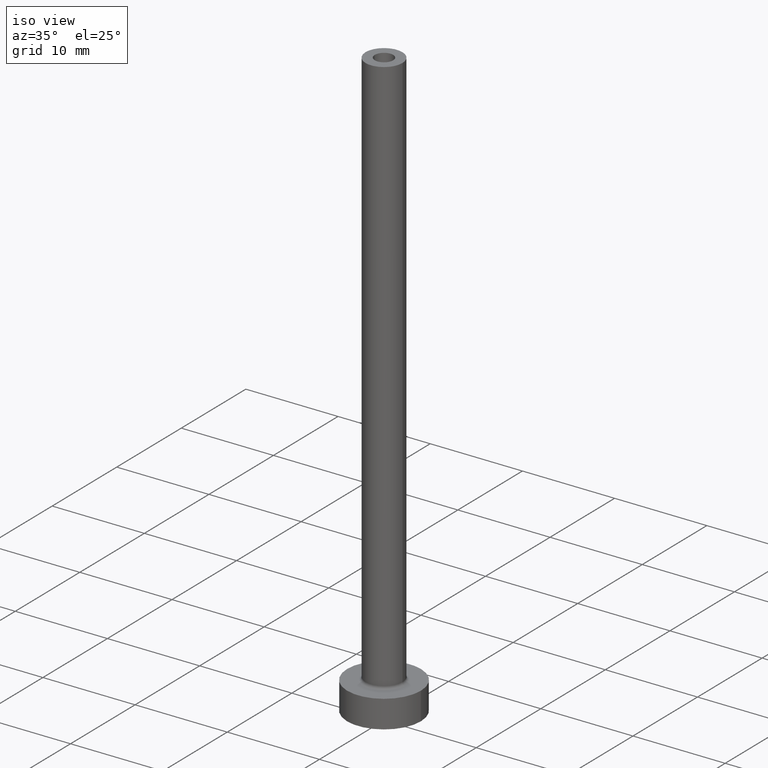
[diagram: clean part render]
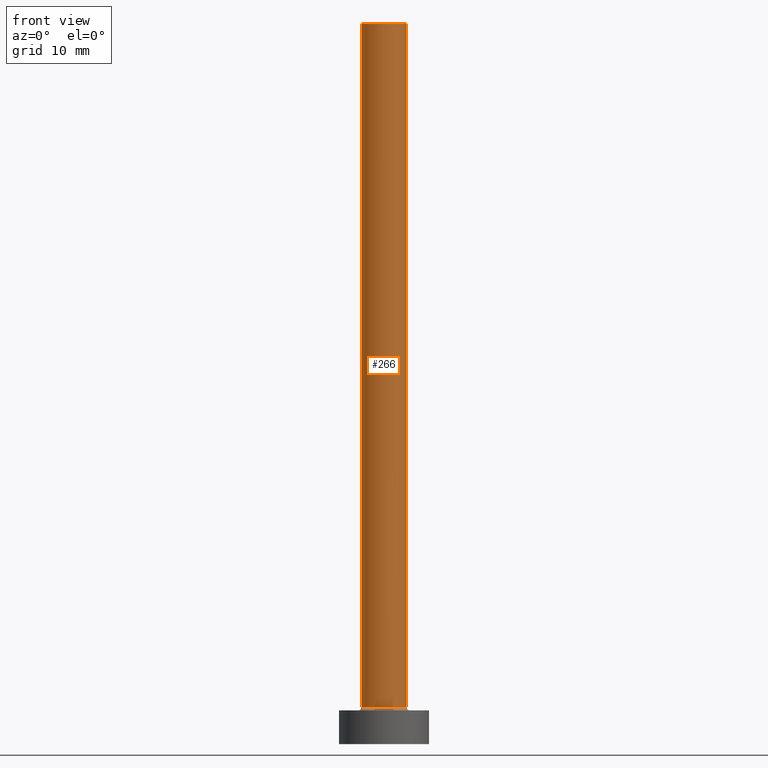
[diagram: tour spotlight — one face highlighted and labeled with its STEP entity id]
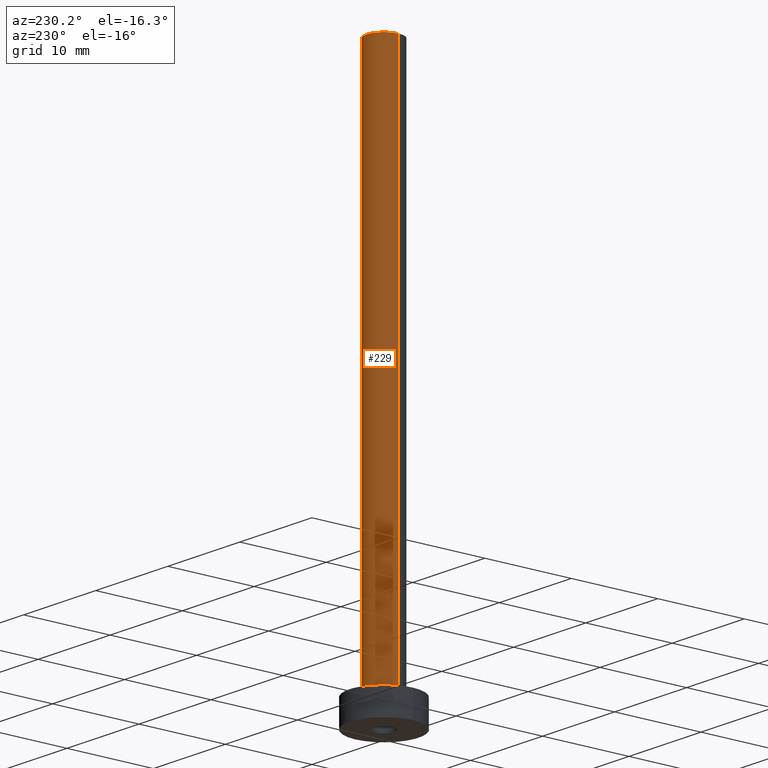
[diagram: tour spotlight — one face highlighted and labeled with its STEP entity id]
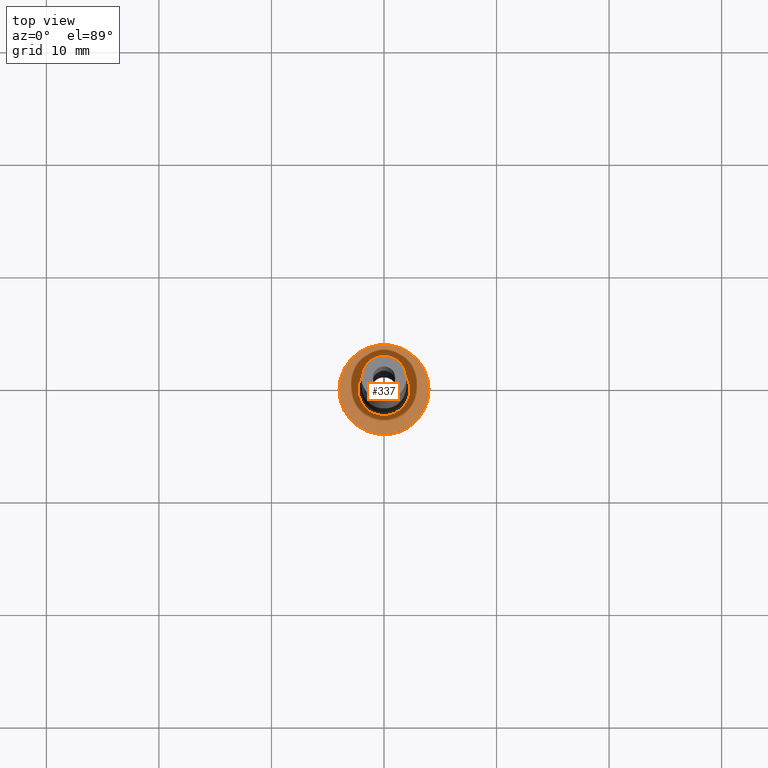
[diagram: tour spotlight — one face highlighted and labeled with its STEP entity id]
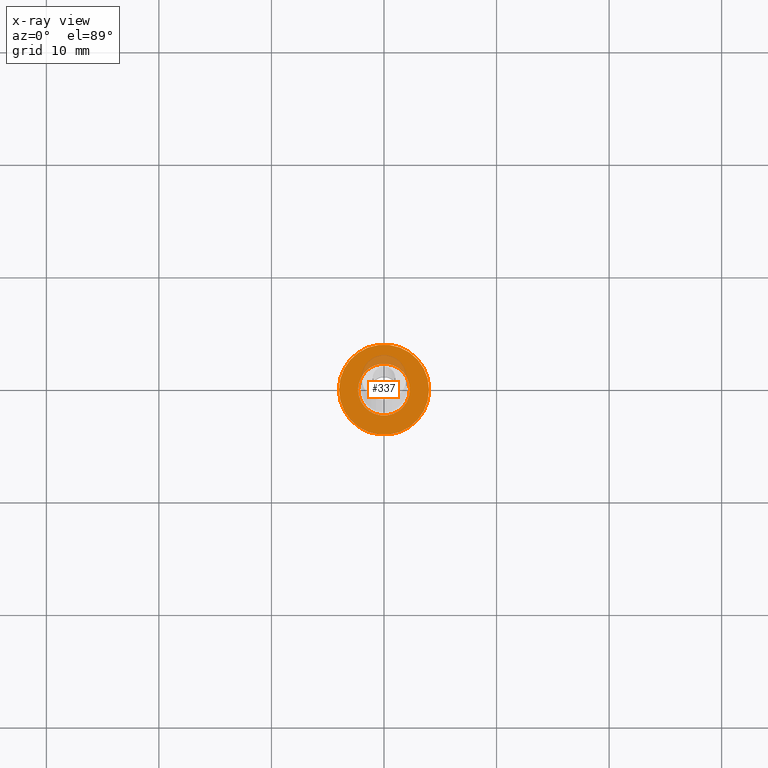
[diagram: x-ray of the same camera — body ghosted, this tour face saturated]
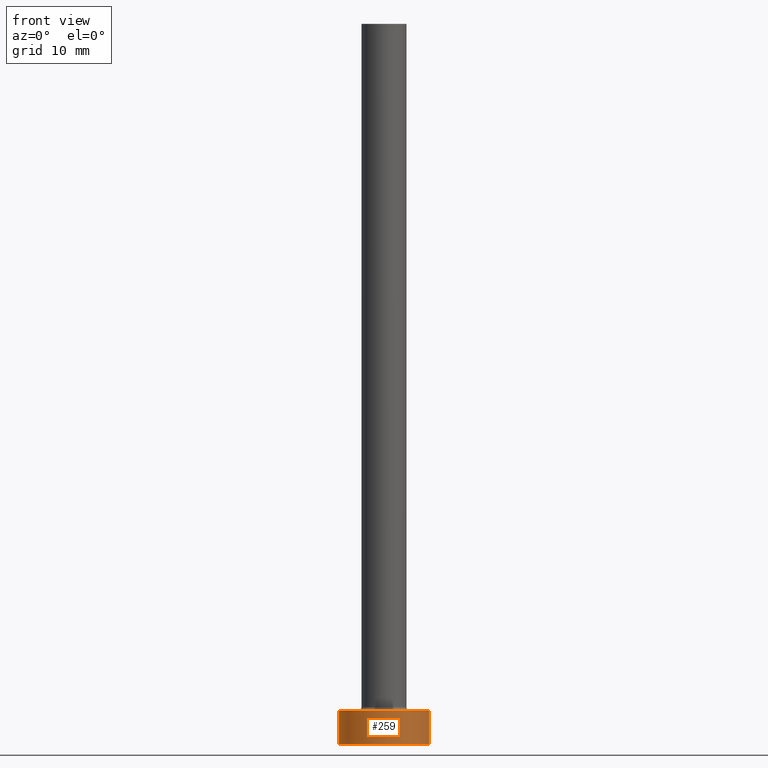
[diagram: tour spotlight — one face highlighted and labeled with its STEP entity id]
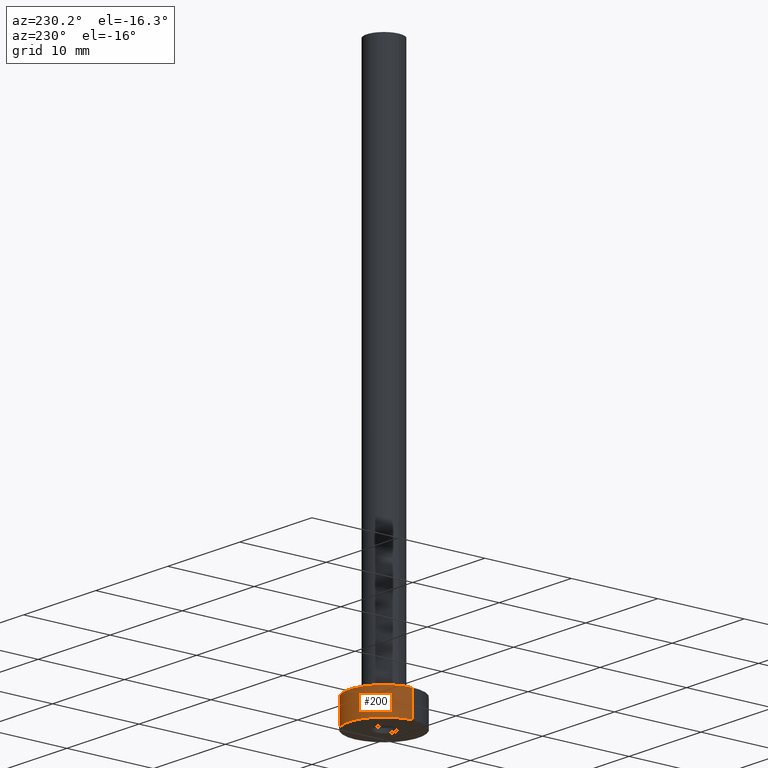
[diagram: tour spotlight — one face highlighted and labeled with its STEP entity id]
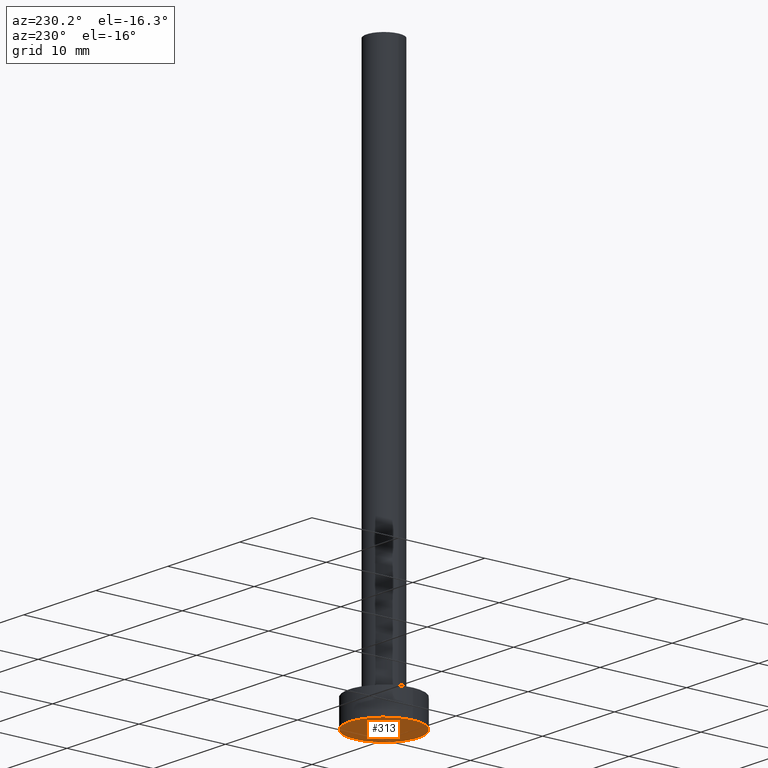
[diagram: tour spotlight — one face highlighted and labeled with its STEP entity id]
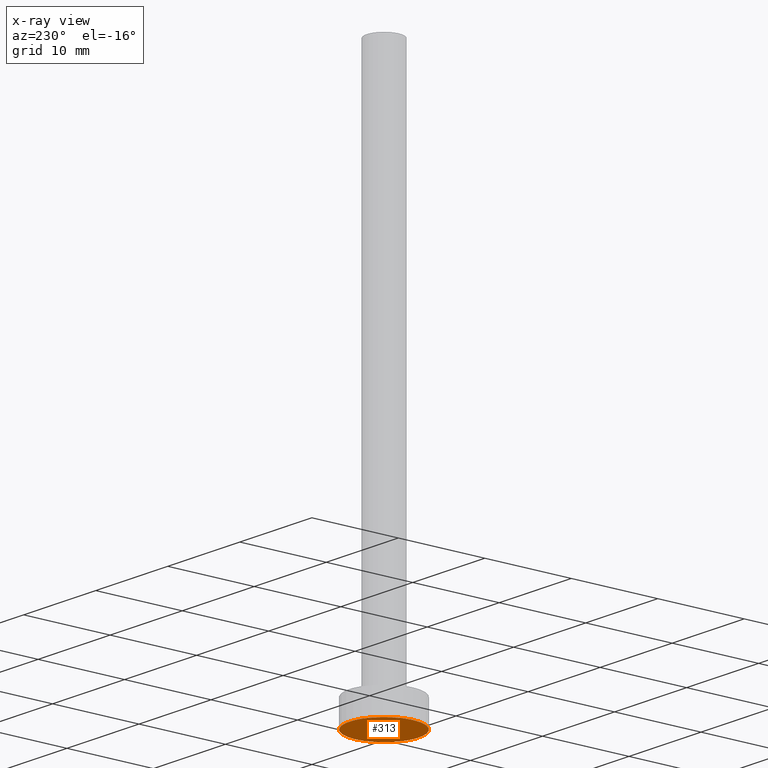
[diagram: x-ray of the same camera — body ghosted, this tour face saturated]
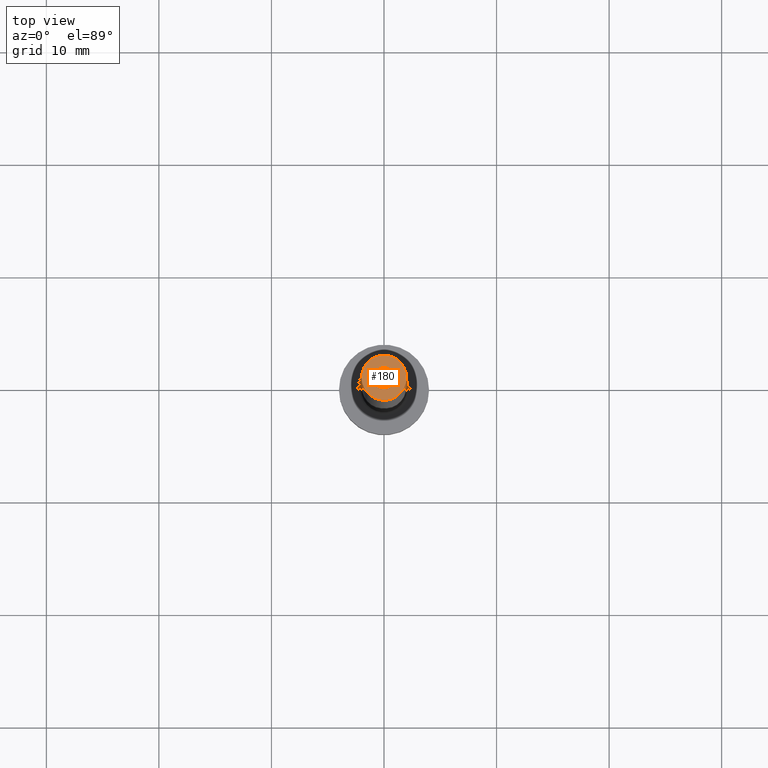
[diagram: tour spotlight — one face highlighted and labeled with its STEP entity id]
A machine part: a face-by-face anatomy tour. The part has 14 B-rep faces; the first image is the clean iso view, then the 7 largest visible faces are spotlighted one at a time (largest first), each with its STEP entity span.

Face 1 — front view, entity #266. In plain terms, the highlighted cylindrical surface (edge-blend (fillet) strip) has radius 2 mm, axis along (-0, -0, -1).
Definition (entity closure, byte-faithful):
#3 = CARTESIAN_POINT ( 'NONE',  ( 0.000000000000000000, 0.000000000000000000, 3.299999999999997158 ) ) ;
#10 = EDGE_CURVE ( 'NONE', #241, #307, #429, .T. ) ;
#34 = DIRECTION ( 'NONE',  ( 0.000000000000000000, 0.000000000000000000, 1.000000000000000000 ) ) ;
#73 = CARTESIAN_POINT ( 'NONE',  ( -2.000000000000000000, 0.000000000000000000, 64.00000000000000000 ) ) ;
#82 = CARTESIAN_POINT ( 'NONE',  ( -2.000000000000000000, 0.000000000000000000, 64.00000000000000000 ) ) ;
#85 = CARTESIAN_POINT ( 'NONE',  ( 2.000000000000000000, 2.449293598294705921E-16, 64.00000000000000000 ) ) ;
#86 = EDGE_CURVE ( 'NONE', #241, #98, #391, .T. ) ;
#87 = CARTESIAN_POINT ( 'NONE',  ( 0.000000000000000000, 0.000000000000000000, 64.00000000000000000 ) ) ;
#90 = DIRECTION ( 'NONE',  ( -1.000000000000000000, 0.000000000000000000, 0.000000000000000000 ) ) ;
#92 = EDGE_CURVE ( 'NONE', #98, #375, #228, .T. ) ;
#97 = AXIS2_PLACEMENT_3D ( 'NONE', #87, #260, #90 ) ;
#98 = VERTEX_POINT ( 'NONE', #354 ) ;
#111 = DIRECTION ( 'NONE',  ( 1.000000000000000000, 0.000000000000000000, 0.000000000000000000 ) ) ;
#114 = CYLINDRICAL_SURFACE ( 'NONE', #97, 2.000000000000000000 ) ;
#118 = VECTOR ( 'NONE', #294, 1000.000000000000000 ) ;
#127 = CARTESIAN_POINT ( 'NONE',  ( 2.000000000000000000, 2.449293598294705921E-16, 3.299999999999997158 ) ) ;
#130 = ORIENTED_EDGE ( 'NONE', *, *, #92, .T. ) ;
#148 = DIRECTION ( 'NONE',  ( -0.000000000000000000, -0.000000000000000000, -1.000000000000000000 ) ) ;
#174 = DIRECTION ( 'NONE',  ( 1.000000000000000000, 0.000000000000000000, 0.000000000000000000 ) ) ;
#205 = AXIS2_PLACEMENT_3D ( 'NONE', #208, #34, #174 ) ;
#208 = CARTESIAN_POINT ( 'NONE',  ( 0.000000000000000000, 0.000000000000000000, 64.00000000000000000 ) ) ;
#213 = EDGE_CURVE ( 'NONE', #307, #375, #444, .T. ) ;
#228 = CIRCLE ( 'NONE', #299, 2.000000000000000000 ) ;
#241 = VERTEX_POINT ( 'NONE', #82 ) ;
#260 = DIRECTION ( 'NONE',  ( -0.000000000000000000, -0.000000000000000000, -1.000000000000000000 ) ) ;
#266 = ADVANCED_FACE ( 'NONE', ( #402 ), #114, .T. ) ;
#291 = ORIENTED_EDGE ( 'NONE', *, *, #213, .F. ) ;
#294 = DIRECTION ( 'NONE',  ( -0.000000000000000000, -0.000000000000000000, -1.000000000000000000 ) ) ;
#299 = AXIS2_PLACEMENT_3D ( 'NONE', #3, #394, #111 ) ;
#307 = VERTEX_POINT ( 'NONE', #367 ) ;
#354 = CARTESIAN_POINT ( 'NONE',  ( -2.000000000000000000, 0.000000000000000000, 3.299999999999997158 ) ) ;
#365 = ORIENTED_EDGE ( 'NONE', *, *, #10, .F. ) ;
#367 = CARTESIAN_POINT ( 'NONE',  ( 2.000000000000000000, 2.449293598294705921E-16, 64.00000000000000000 ) ) ;
#375 = VERTEX_POINT ( 'NONE', #127 ) ;
#376 = VECTOR ( 'NONE', #148, 1000.000000000000000 ) ;
#391 = LINE ( 'NONE', #73, #376 ) ;
#394 = DIRECTION ( 'NONE',  ( 0.000000000000000000, 0.000000000000000000, 1.000000000000000000 ) ) ;
#402 = FACE_OUTER_BOUND ( 'NONE', #405, .T. ) ;
#405 = EDGE_LOOP ( 'NONE', ( #291, #365, #453, #130 ) ) ;
#429 = CIRCLE ( 'NONE', #205, 2.000000000000000000 ) ;
#444 = LINE ( 'NONE', #85, #118 ) ;
#453 = ORIENTED_EDGE ( 'NONE', *, *, #86, .T. ) ;

Face 2 — auxiliary view, entity #229. In plain terms, the highlighted cylindrical surface (edge-blend (fillet) strip) has radius 2 mm, axis along (-0, -0, -1).
Definition (entity closure, byte-faithful):
#25 = ORIENTED_EDGE ( 'NONE', *, *, #427, .F. ) ;
#31 = ORIENTED_EDGE ( 'NONE', *, *, #213, .T. ) ;
#52 = ORIENTED_EDGE ( 'NONE', *, *, #86, .F. ) ;
#63 = AXIS2_PLACEMENT_3D ( 'NONE', #102, #65, #240 ) ;
#65 = DIRECTION ( 'NONE',  ( 0.000000000000000000, 0.000000000000000000, 1.000000000000000000 ) ) ;
#73 = CARTESIAN_POINT ( 'NONE',  ( -2.000000000000000000, 0.000000000000000000, 64.00000000000000000 ) ) ;
#82 = CARTESIAN_POINT ( 'NONE',  ( -2.000000000000000000, 0.000000000000000000, 64.00000000000000000 ) ) ;
#85 = CARTESIAN_POINT ( 'NONE',  ( 2.000000000000000000, 2.449293598294705921E-16, 64.00000000000000000 ) ) ;
#86 = EDGE_CURVE ( 'NONE', #241, #98, #391, .T. ) ;
#91 = AXIS2_PLACEMENT_3D ( 'NONE', #264, #339, #452 ) ;
#98 = VERTEX_POINT ( 'NONE', #354 ) ;
#102 = CARTESIAN_POINT ( 'NONE',  ( 0.000000000000000000, 0.000000000000000000, 3.299999999999997158 ) ) ;
#118 = VECTOR ( 'NONE', #294, 1000.000000000000000 ) ;
#121 = DIRECTION ( 'NONE',  ( -1.000000000000000000, 0.000000000000000000, 0.000000000000000000 ) ) ;
#127 = CARTESIAN_POINT ( 'NONE',  ( 2.000000000000000000, 2.449293598294705921E-16, 3.299999999999997158 ) ) ;
#148 = DIRECTION ( 'NONE',  ( -0.000000000000000000, -0.000000000000000000, -1.000000000000000000 ) ) ;
#160 = FACE_OUTER_BOUND ( 'NONE', #235, .T. ) ;
#213 = EDGE_CURVE ( 'NONE', #307, #375, #444, .T. ) ;
#229 = ADVANCED_FACE ( 'NONE', ( #160 ), #255, .T. ) ;
#235 = EDGE_LOOP ( 'NONE', ( #25, #31, #338, #52 ) ) ;
#240 = DIRECTION ( 'NONE',  ( 1.000000000000000000, 0.000000000000000000, 0.000000000000000000 ) ) ;
#241 = VERTEX_POINT ( 'NONE', #82 ) ;
#255 = CYLINDRICAL_SURFACE ( 'NONE', #341, 2.000000000000000000 ) ;
#258 = DIRECTION ( 'NONE',  ( -0.000000000000000000, -0.000000000000000000, -1.000000000000000000 ) ) ;
#262 = CIRCLE ( 'NONE', #63, 2.000000000000000000 ) ;
#264 = CARTESIAN_POINT ( 'NONE',  ( 0.000000000000000000, 0.000000000000000000, 64.00000000000000000 ) ) ;
#271 = CIRCLE ( 'NONE', #91, 2.000000000000000000 ) ;
#294 = DIRECTION ( 'NONE',  ( -0.000000000000000000, -0.000000000000000000, -1.000000000000000000 ) ) ;
#307 = VERTEX_POINT ( 'NONE', #367 ) ;
#338 = ORIENTED_EDGE ( 'NONE', *, *, #353, .T. ) ;
#339 = DIRECTION ( 'NONE',  ( 0.000000000000000000, 0.000000000000000000, 1.000000000000000000 ) ) ;
#341 = AXIS2_PLACEMENT_3D ( 'NONE', #442, #258, #121 ) ;
#353 = EDGE_CURVE ( 'NONE', #375, #98, #262, .T. ) ;
#354 = CARTESIAN_POINT ( 'NONE',  ( -2.000000000000000000, 0.000000000000000000, 3.299999999999997158 ) ) ;
#367 = CARTESIAN_POINT ( 'NONE',  ( 2.000000000000000000, 2.449293598294705921E-16, 64.00000000000000000 ) ) ;
#375 = VERTEX_POINT ( 'NONE', #127 ) ;
#376 = VECTOR ( 'NONE', #148, 1000.000000000000000 ) ;
#391 = LINE ( 'NONE', #73, #376 ) ;
#427 = EDGE_CURVE ( 'NONE', #307, #241, #271, .T. ) ;
#442 = CARTESIAN_POINT ( 'NONE',  ( 0.000000000000000000, 0.000000000000000000, 64.00000000000000000 ) ) ;
#444 = LINE ( 'NONE', #85, #118 ) ;
#452 = DIRECTION ( 'NONE',  ( 1.000000000000000000, 0.000000000000000000, 0.000000000000000000 ) ) ;

Face 3 — top view, entity #337. An x-ray twin of the same camera follows (body ghosted, this face saturated) — the face is partly hidden behind the body. In plain terms, the highlighted planar face has unit normal (0, 0, 1).
Definition (entity closure, byte-faithful):
#17 = AXIS2_PLACEMENT_3D ( 'NONE', #304, #163, #418 ) ;
#21 = CARTESIAN_POINT ( 'NONE',  ( 0.000000000000000000, 0.000000000000000000, 3.000000000000000000 ) ) ;
#24 = CIRCLE ( 'NONE', #279, 2.299999999999999822 ) ;
#53 = VERTEX_POINT ( 'NONE', #312 ) ;
#125 = PLANE ( 'NONE',  #17 ) ;
#131 = CARTESIAN_POINT ( 'NONE',  ( -4.000000000000000000, 0.000000000000000000, 3.000000000000000000 ) ) ;
#136 = DIRECTION ( 'NONE',  ( 1.000000000000000000, 0.000000000000000000, 0.000000000000000000 ) ) ;
#141 = CARTESIAN_POINT ( 'NONE',  ( 0.000000000000000000, 0.000000000000000000, 3.000000000000000000 ) ) ;
#149 = EDGE_CURVE ( 'NONE', #194, #53, #308, .T. ) ;
#158 = ORIENTED_EDGE ( 'NONE', *, *, #398, .T. ) ;
#159 = AXIS2_PLACEMENT_3D ( 'NONE', #141, #248, #423 ) ;
#163 = DIRECTION ( 'NONE',  ( 0.000000000000000000, 0.000000000000000000, 1.000000000000000000 ) ) ;
#166 = FACE_OUTER_BOUND ( 'NONE', #199, .T. ) ;
#172 = DIRECTION ( 'NONE',  ( 1.000000000000000000, 0.000000000000000000, 0.000000000000000000 ) ) ;
#194 = VERTEX_POINT ( 'NONE', #419 ) ;
#198 = DIRECTION ( 'NONE',  ( 1.000000000000000000, 0.000000000000000000, 0.000000000000000000 ) ) ;
#199 = EDGE_LOOP ( 'NONE', ( #303, #239 ) ) ;
#203 = CARTESIAN_POINT ( 'NONE',  ( 0.000000000000000000, 0.000000000000000000, 3.000000000000000000 ) ) ;
#212 = CIRCLE ( 'NONE', #406, 4.000000000000000000 ) ;
#233 = DIRECTION ( 'NONE',  ( 0.000000000000000000, 0.000000000000000000, 1.000000000000000000 ) ) ;
#239 = ORIENTED_EDGE ( 'NONE', *, *, #434, .T. ) ;
#248 = DIRECTION ( 'NONE',  ( -0.000000000000000000, -0.000000000000000000, -1.000000000000000000 ) ) ;
#263 = AXIS2_PLACEMENT_3D ( 'NONE', #203, #233, #198 ) ;
#267 = CARTESIAN_POINT ( 'NONE',  ( 4.000000000000000000, 4.898587196589412829E-16, 3.000000000000000000 ) ) ;
#273 = EDGE_LOOP ( 'NONE', ( #443, #158 ) ) ;
#279 = AXIS2_PLACEMENT_3D ( 'NONE', #21, #408, #172 ) ;
#302 = DIRECTION ( 'NONE',  ( 0.000000000000000000, 0.000000000000000000, 1.000000000000000000 ) ) ;
#303 = ORIENTED_EDGE ( 'NONE', *, *, #366, .T. ) ;
#304 = CARTESIAN_POINT ( 'NONE',  ( 0.000000000000000000, 0.000000000000000000, 3.000000000000000000 ) ) ;
#308 = CIRCLE ( 'NONE', #159, 2.299999999999999822 ) ;
#309 = CARTESIAN_POINT ( 'NONE',  ( 0.000000000000000000, 0.000000000000000000, 3.000000000000000000 ) ) ;
#312 = CARTESIAN_POINT ( 'NONE',  ( -2.299999999999999822, 2.816687638038912056E-16, 2.999999999999998668 ) ) ;
#337 = ADVANCED_FACE ( 'NONE', ( #372, #166 ), #125, .T. ) ;
#366 = EDGE_CURVE ( 'NONE', #370, #441, #421, .T. ) ;
#370 = VERTEX_POINT ( 'NONE', #131 ) ;
#372 = FACE_BOUND ( 'NONE', #273, .T. ) ;
#398 = EDGE_CURVE ( 'NONE', #53, #194, #24, .T. ) ;
#406 = AXIS2_PLACEMENT_3D ( 'NONE', #309, #302, #136 ) ;
#408 = DIRECTION ( 'NONE',  ( -0.000000000000000000, -0.000000000000000000, -1.000000000000000000 ) ) ;
#418 = DIRECTION ( 'NONE',  ( 1.000000000000000000, 0.000000000000000000, -0.000000000000000000 ) ) ;
#419 = CARTESIAN_POINT ( 'NONE',  ( 2.299999999999999822, 0.000000000000000000, 2.999999999999998668 ) ) ;
#421 = CIRCLE ( 'NONE', #263, 4.000000000000000000 ) ;
#423 = DIRECTION ( 'NONE',  ( 1.000000000000000000, 0.000000000000000000, 0.000000000000000000 ) ) ;
#434 = EDGE_CURVE ( 'NONE', #441, #370, #212, .T. ) ;
#441 = VERTEX_POINT ( 'NONE', #267 ) ;
#443 = ORIENTED_EDGE ( 'NONE', *, *, #149, .T. ) ;

Face 4 — front view, entity #259. In plain terms, the highlighted cylindrical surface (partial cylindrical patch) has radius 4 mm, axis along (-0, -0, -1).
Definition (entity closure, byte-faithful):
#2 = EDGE_CURVE ( 'NONE', #441, #66, #204, .T. ) ;
#13 = ORIENTED_EDGE ( 'NONE', *, *, #38, .T. ) ;
#18 = EDGE_CURVE ( 'NONE', #370, #330, #104, .T. ) ;
#38 = EDGE_CURVE ( 'NONE', #330, #66, #278, .T. ) ;
#43 = DIRECTION ( 'NONE',  ( 0.000000000000000000, 0.000000000000000000, 1.000000000000000000 ) ) ;
#46 = CARTESIAN_POINT ( 'NONE',  ( 0.000000000000000000, 0.000000000000000000, 0.000000000000000000 ) ) ;
#51 = CYLINDRICAL_SURFACE ( 'NONE', #242, 4.000000000000000000 ) ;
#66 = VERTEX_POINT ( 'NONE', #282 ) ;
#76 = AXIS2_PLACEMENT_3D ( 'NONE', #46, #43, #215 ) ;
#79 = DIRECTION ( 'NONE',  ( -0.000000000000000000, -0.000000000000000000, -1.000000000000000000 ) ) ;
#84 = FACE_OUTER_BOUND ( 'NONE', #455, .T. ) ;
#103 = ORIENTED_EDGE ( 'NONE', *, *, #366, .F. ) ;
#104 = LINE ( 'NONE', #244, #132 ) ;
#123 = DIRECTION ( 'NONE',  ( -0.000000000000000000, -0.000000000000000000, -1.000000000000000000 ) ) ;
#131 = CARTESIAN_POINT ( 'NONE',  ( -4.000000000000000000, 0.000000000000000000, 3.000000000000000000 ) ) ;
#132 = VECTOR ( 'NONE', #79, 1000.000000000000000 ) ;
#152 = CARTESIAN_POINT ( 'NONE',  ( 0.000000000000000000, 0.000000000000000000, 3.000000000000000000 ) ) ;
#170 = CARTESIAN_POINT ( 'NONE',  ( -4.000000000000000000, 0.000000000000000000, 0.000000000000000000 ) ) ;
#173 = DIRECTION ( 'NONE',  ( -0.000000000000000000, -0.000000000000000000, -1.000000000000000000 ) ) ;
#187 = ORIENTED_EDGE ( 'NONE', *, *, #2, .F. ) ;
#198 = DIRECTION ( 'NONE',  ( 1.000000000000000000, 0.000000000000000000, 0.000000000000000000 ) ) ;
#203 = CARTESIAN_POINT ( 'NONE',  ( 0.000000000000000000, 0.000000000000000000, 3.000000000000000000 ) ) ;
#204 = LINE ( 'NONE', #348, #369 ) ;
#215 = DIRECTION ( 'NONE',  ( 1.000000000000000000, 0.000000000000000000, 0.000000000000000000 ) ) ;
#233 = DIRECTION ( 'NONE',  ( 0.000000000000000000, 0.000000000000000000, 1.000000000000000000 ) ) ;
#242 = AXIS2_PLACEMENT_3D ( 'NONE', #152, #123, #332 ) ;
#244 = CARTESIAN_POINT ( 'NONE',  ( -4.000000000000000000, 0.000000000000000000, 3.000000000000000000 ) ) ;
#259 = ADVANCED_FACE ( 'NONE', ( #84 ), #51, .T. ) ;
#263 = AXIS2_PLACEMENT_3D ( 'NONE', #203, #233, #198 ) ;
#267 = CARTESIAN_POINT ( 'NONE',  ( 4.000000000000000000, 4.898587196589412829E-16, 3.000000000000000000 ) ) ;
#278 = CIRCLE ( 'NONE', #76, 4.000000000000000000 ) ;
#282 = CARTESIAN_POINT ( 'NONE',  ( 4.000000000000000000, 4.898587196589412829E-16, 0.000000000000000000 ) ) ;
#296 = ORIENTED_EDGE ( 'NONE', *, *, #18, .T. ) ;
#330 = VERTEX_POINT ( 'NONE', #170 ) ;
#332 = DIRECTION ( 'NONE',  ( -1.000000000000000000, 0.000000000000000000, 0.000000000000000000 ) ) ;
#348 = CARTESIAN_POINT ( 'NONE',  ( 4.000000000000000000, 4.898587196589412829E-16, 3.000000000000000000 ) ) ;
#366 = EDGE_CURVE ( 'NONE', #370, #441, #421, .T. ) ;
#369 = VECTOR ( 'NONE', #173, 1000.000000000000000 ) ;
#370 = VERTEX_POINT ( 'NONE', #131 ) ;
#421 = CIRCLE ( 'NONE', #263, 4.000000000000000000 ) ;
#441 = VERTEX_POINT ( 'NONE', #267 ) ;
#455 = EDGE_LOOP ( 'NONE', ( #187, #103, #296, #13 ) ) ;

Face 5 — auxiliary view, entity #200. In plain terms, the highlighted cylindrical surface (partial cylindrical patch) has radius 4 mm, axis along (-0, -0, -1).
Definition (entity closure, byte-faithful):
#2 = EDGE_CURVE ( 'NONE', #441, #66, #204, .T. ) ;
#18 = EDGE_CURVE ( 'NONE', #370, #330, #104, .T. ) ;
#28 = ORIENTED_EDGE ( 'NONE', *, *, #2, .T. ) ;
#58 = DIRECTION ( 'NONE',  ( -0.000000000000000000, -0.000000000000000000, -1.000000000000000000 ) ) ;
#66 = VERTEX_POINT ( 'NONE', #282 ) ;
#79 = DIRECTION ( 'NONE',  ( -0.000000000000000000, -0.000000000000000000, -1.000000000000000000 ) ) ;
#104 = LINE ( 'NONE', #244, #132 ) ;
#109 = AXIS2_PLACEMENT_3D ( 'NONE', #432, #58, #329 ) ;
#131 = CARTESIAN_POINT ( 'NONE',  ( -4.000000000000000000, 0.000000000000000000, 3.000000000000000000 ) ) ;
#132 = VECTOR ( 'NONE', #79, 1000.000000000000000 ) ;
#136 = DIRECTION ( 'NONE',  ( 1.000000000000000000, 0.000000000000000000, 0.000000000000000000 ) ) ;
#151 = AXIS2_PLACEMENT_3D ( 'NONE', #446, #449, #382 ) ;
#170 = CARTESIAN_POINT ( 'NONE',  ( -4.000000000000000000, 0.000000000000000000, 0.000000000000000000 ) ) ;
#173 = DIRECTION ( 'NONE',  ( -0.000000000000000000, -0.000000000000000000, -1.000000000000000000 ) ) ;
#200 = ADVANCED_FACE ( 'NONE', ( #440 ), #223, .T. ) ;
#204 = LINE ( 'NONE', #348, #369 ) ;
#212 = CIRCLE ( 'NONE', #406, 4.000000000000000000 ) ;
#223 = CYLINDRICAL_SURFACE ( 'NONE', #109, 4.000000000000000000 ) ;
#244 = CARTESIAN_POINT ( 'NONE',  ( -4.000000000000000000, 0.000000000000000000, 3.000000000000000000 ) ) ;
#267 = CARTESIAN_POINT ( 'NONE',  ( 4.000000000000000000, 4.898587196589412829E-16, 3.000000000000000000 ) ) ;
#275 = ORIENTED_EDGE ( 'NONE', *, *, #18, .F. ) ;
#282 = CARTESIAN_POINT ( 'NONE',  ( 4.000000000000000000, 4.898587196589412829E-16, 0.000000000000000000 ) ) ;
#298 = ORIENTED_EDGE ( 'NONE', *, *, #379, .T. ) ;
#302 = DIRECTION ( 'NONE',  ( 0.000000000000000000, 0.000000000000000000, 1.000000000000000000 ) ) ;
#305 = EDGE_LOOP ( 'NONE', ( #351, #28, #298, #275 ) ) ;
#309 = CARTESIAN_POINT ( 'NONE',  ( 0.000000000000000000, 0.000000000000000000, 3.000000000000000000 ) ) ;
#329 = DIRECTION ( 'NONE',  ( -1.000000000000000000, 0.000000000000000000, 0.000000000000000000 ) ) ;
#330 = VERTEX_POINT ( 'NONE', #170 ) ;
#342 = CIRCLE ( 'NONE', #151, 4.000000000000000000 ) ;
#348 = CARTESIAN_POINT ( 'NONE',  ( 4.000000000000000000, 4.898587196589412829E-16, 3.000000000000000000 ) ) ;
#351 = ORIENTED_EDGE ( 'NONE', *, *, #434, .F. ) ;
#369 = VECTOR ( 'NONE', #173, 1000.000000000000000 ) ;
#370 = VERTEX_POINT ( 'NONE', #131 ) ;
#379 = EDGE_CURVE ( 'NONE', #66, #330, #342, .T. ) ;
#382 = DIRECTION ( 'NONE',  ( 1.000000000000000000, 0.000000000000000000, 0.000000000000000000 ) ) ;
#406 = AXIS2_PLACEMENT_3D ( 'NONE', #309, #302, #136 ) ;
#432 = CARTESIAN_POINT ( 'NONE',  ( 0.000000000000000000, 0.000000000000000000, 3.000000000000000000 ) ) ;
#434 = EDGE_CURVE ( 'NONE', #441, #370, #212, .T. ) ;
#440 = FACE_OUTER_BOUND ( 'NONE', #305, .T. ) ;
#441 = VERTEX_POINT ( 'NONE', #267 ) ;
#446 = CARTESIAN_POINT ( 'NONE',  ( 0.000000000000000000, 0.000000000000000000, 0.000000000000000000 ) ) ;
#449 = DIRECTION ( 'NONE',  ( 0.000000000000000000, 0.000000000000000000, 1.000000000000000000 ) ) ;

Face 6 — auxiliary view, entity #313. An x-ray twin of the same camera follows (body ghosted, this face saturated) — the face is partly hidden behind the body. In plain terms, the highlighted planar face has unit normal (0, 0, 1).
Definition (entity closure, byte-faithful):
#5 = CARTESIAN_POINT ( 'NONE',  ( 0.000000000000000000, 0.000000000000000000, 0.000000000000000000 ) ) ;
#7 = CIRCLE ( 'NONE', #48, 1.149999999999999911 ) ;
#12 = DIRECTION ( 'NONE',  ( 1.000000000000000000, 0.000000000000000000, 0.000000000000000000 ) ) ;
#19 = FACE_BOUND ( 'NONE', #381, .T. ) ;
#22 = EDGE_LOOP ( 'NONE', ( #64, #378 ) ) ;
#38 = EDGE_CURVE ( 'NONE', #330, #66, #278, .T. ) ;
#43 = DIRECTION ( 'NONE',  ( 0.000000000000000000, 0.000000000000000000, 1.000000000000000000 ) ) ;
#46 = CARTESIAN_POINT ( 'NONE',  ( 0.000000000000000000, 0.000000000000000000, 0.000000000000000000 ) ) ;
#48 = AXIS2_PLACEMENT_3D ( 'NONE', #289, #230, #12 ) ;
#59 = ORIENTED_EDGE ( 'NONE', *, *, #101, .F. ) ;
#60 = DIRECTION ( 'NONE',  ( 1.000000000000000000, 0.000000000000000000, -0.000000000000000000 ) ) ;
#64 = ORIENTED_EDGE ( 'NONE', *, *, #38, .F. ) ;
#66 = VERTEX_POINT ( 'NONE', #282 ) ;
#76 = AXIS2_PLACEMENT_3D ( 'NONE', #46, #43, #215 ) ;
#89 = CIRCLE ( 'NONE', #261, 1.149999999999999911 ) ;
#95 = DIRECTION ( 'NONE',  ( 0.000000000000000000, 0.000000000000000000, 1.000000000000000000 ) ) ;
#101 = EDGE_CURVE ( 'NONE', #270, #335, #89, .T. ) ;
#151 = AXIS2_PLACEMENT_3D ( 'NONE', #446, #449, #382 ) ;
#170 = CARTESIAN_POINT ( 'NONE',  ( -4.000000000000000000, 0.000000000000000000, 0.000000000000000000 ) ) ;
#193 = CARTESIAN_POINT ( 'NONE',  ( -1.149999999999999911, 0.000000000000000000, 0.000000000000000000 ) ) ;
#196 = ORIENTED_EDGE ( 'NONE', *, *, #281, .F. ) ;
#215 = DIRECTION ( 'NONE',  ( 1.000000000000000000, 0.000000000000000000, 0.000000000000000000 ) ) ;
#230 = DIRECTION ( 'NONE',  ( -0.000000000000000000, -0.000000000000000000, -1.000000000000000000 ) ) ;
#231 = CARTESIAN_POINT ( 'NONE',  ( 1.149999999999999911, 1.408343819019456028E-16, 0.000000000000000000 ) ) ;
#261 = AXIS2_PLACEMENT_3D ( 'NONE', #5, #387, #286 ) ;
#270 = VERTEX_POINT ( 'NONE', #193 ) ;
#278 = CIRCLE ( 'NONE', #76, 4.000000000000000000 ) ;
#281 = EDGE_CURVE ( 'NONE', #335, #270, #7, .T. ) ;
#282 = CARTESIAN_POINT ( 'NONE',  ( 4.000000000000000000, 4.898587196589412829E-16, 0.000000000000000000 ) ) ;
#286 = DIRECTION ( 'NONE',  ( 1.000000000000000000, 0.000000000000000000, 0.000000000000000000 ) ) ;
#288 = CARTESIAN_POINT ( 'NONE',  ( 0.000000000000000000, 0.000000000000000000, 0.000000000000000000 ) ) ;
#289 = CARTESIAN_POINT ( 'NONE',  ( 0.000000000000000000, 0.000000000000000000, 0.000000000000000000 ) ) ;
#295 = PLANE ( 'NONE',  #349 ) ;
#313 = ADVANCED_FACE ( 'NONE', ( #19, #336 ), #295, .F. ) ;
#330 = VERTEX_POINT ( 'NONE', #170 ) ;
#335 = VERTEX_POINT ( 'NONE', #231 ) ;
#336 = FACE_OUTER_BOUND ( 'NONE', #22, .T. ) ;
#342 = CIRCLE ( 'NONE', #151, 4.000000000000000000 ) ;
#349 = AXIS2_PLACEMENT_3D ( 'NONE', #288, #95, #60 ) ;
#378 = ORIENTED_EDGE ( 'NONE', *, *, #379, .F. ) ;
#379 = EDGE_CURVE ( 'NONE', #66, #330, #342, .T. ) ;
#381 = EDGE_LOOP ( 'NONE', ( #59, #196 ) ) ;
#382 = DIRECTION ( 'NONE',  ( 1.000000000000000000, 0.000000000000000000, 0.000000000000000000 ) ) ;
#387 = DIRECTION ( 'NONE',  ( -0.000000000000000000, -0.000000000000000000, -1.000000000000000000 ) ) ;
#446 = CARTESIAN_POINT ( 'NONE',  ( 0.000000000000000000, 0.000000000000000000, 0.000000000000000000 ) ) ;
#449 = DIRECTION ( 'NONE',  ( 0.000000000000000000, 0.000000000000000000, 1.000000000000000000 ) ) ;

Face 7 — top view, entity #180. In plain terms, the highlighted planar face has unit normal (0, 0, 1).
Definition (entity closure, byte-faithful):
#10 = EDGE_CURVE ( 'NONE', #241, #307, #429, .T. ) ;
#20 = ORIENTED_EDGE ( 'NONE', *, *, #324, .F. ) ;
#34 = DIRECTION ( 'NONE',  ( 0.000000000000000000, 0.000000000000000000, 1.000000000000000000 ) ) ;
#36 = DIRECTION ( 'NONE',  ( 0.000000000000000000, 0.000000000000000000, 1.000000000000000000 ) ) ;
#40 = FACE_BOUND ( 'NONE', #327, .T. ) ;
#54 = EDGE_CURVE ( 'NONE', #237, #265, #384, .T. ) ;
#57 = ORIENTED_EDGE ( 'NONE', *, *, #54, .F. ) ;
#82 = CARTESIAN_POINT ( 'NONE',  ( -2.000000000000000000, 0.000000000000000000, 64.00000000000000000 ) ) ;
#91 = AXIS2_PLACEMENT_3D ( 'NONE', #264, #339, #452 ) ;
#108 = DIRECTION ( 'NONE',  ( 1.000000000000000000, 0.000000000000000000, 0.000000000000000000 ) ) ;
#122 = ORIENTED_EDGE ( 'NONE', *, *, #10, .T. ) ;
#139 = EDGE_LOOP ( 'NONE', ( #122, #224 ) ) ;
#153 = CARTESIAN_POINT ( 'NONE',  ( 1.000000000000000000, 1.224646799147353207E-16, 64.00000000000000000 ) ) ;
#165 = AXIS2_PLACEMENT_3D ( 'NONE', #183, #36, #430 ) ;
#174 = DIRECTION ( 'NONE',  ( 1.000000000000000000, 0.000000000000000000, 0.000000000000000000 ) ) ;
#180 = ADVANCED_FACE ( 'NONE', ( #40, #280 ), #422, .T. ) ;
#183 = CARTESIAN_POINT ( 'NONE',  ( 0.000000000000000000, 0.000000000000000000, 64.00000000000000000 ) ) ;
#205 = AXIS2_PLACEMENT_3D ( 'NONE', #208, #34, #174 ) ;
#208 = CARTESIAN_POINT ( 'NONE',  ( 0.000000000000000000, 0.000000000000000000, 64.00000000000000000 ) ) ;
#224 = ORIENTED_EDGE ( 'NONE', *, *, #427, .T. ) ;
#237 = VERTEX_POINT ( 'NONE', #257 ) ;
#241 = VERTEX_POINT ( 'NONE', #82 ) ;
#257 = CARTESIAN_POINT ( 'NONE',  ( -1.000000000000000000, 0.000000000000000000, 64.00000000000000000 ) ) ;
#264 = CARTESIAN_POINT ( 'NONE',  ( 0.000000000000000000, 0.000000000000000000, 64.00000000000000000 ) ) ;
#265 = VERTEX_POINT ( 'NONE', #153 ) ;
#271 = CIRCLE ( 'NONE', #91, 2.000000000000000000 ) ;
#274 = DIRECTION ( 'NONE',  ( 0.000000000000000000, 0.000000000000000000, 1.000000000000000000 ) ) ;
#280 = FACE_OUTER_BOUND ( 'NONE', #139, .T. ) ;
#307 = VERTEX_POINT ( 'NONE', #367 ) ;
#316 = DIRECTION ( 'NONE',  ( 0.000000000000000000, 0.000000000000000000, 1.000000000000000000 ) ) ;
#319 = CARTESIAN_POINT ( 'NONE',  ( 0.000000000000000000, 0.000000000000000000, 64.00000000000000000 ) ) ;
#323 = CIRCLE ( 'NONE', #371, 1.000000000000000000 ) ;
#324 = EDGE_CURVE ( 'NONE', #265, #237, #323, .T. ) ;
#327 = EDGE_LOOP ( 'NONE', ( #57, #20 ) ) ;
#339 = DIRECTION ( 'NONE',  ( 0.000000000000000000, 0.000000000000000000, 1.000000000000000000 ) ) ;
#343 = CARTESIAN_POINT ( 'NONE',  ( 0.000000000000000000, 0.000000000000000000, 64.00000000000000000 ) ) ;
#367 = CARTESIAN_POINT ( 'NONE',  ( 2.000000000000000000, 2.449293598294705921E-16, 64.00000000000000000 ) ) ;
#371 = AXIS2_PLACEMENT_3D ( 'NONE', #343, #274, #380 ) ;
#380 = DIRECTION ( 'NONE',  ( 1.000000000000000000, 0.000000000000000000, 0.000000000000000000 ) ) ;
#384 = CIRCLE ( 'NONE', #456, 1.000000000000000000 ) ;
#422 = PLANE ( 'NONE',  #165 ) ;
#427 = EDGE_CURVE ( 'NONE', #307, #241, #271, .T. ) ;
#429 = CIRCLE ( 'NONE', #205, 2.000000000000000000 ) ;
#430 = DIRECTION ( 'NONE',  ( 1.000000000000000000, 0.000000000000000000, -0.000000000000000000 ) ) ;
#452 = DIRECTION ( 'NONE',  ( 1.000000000000000000, 0.000000000000000000, 0.000000000000000000 ) ) ;
#456 = AXIS2_PLACEMENT_3D ( 'NONE', #319, #316, #108 ) ;